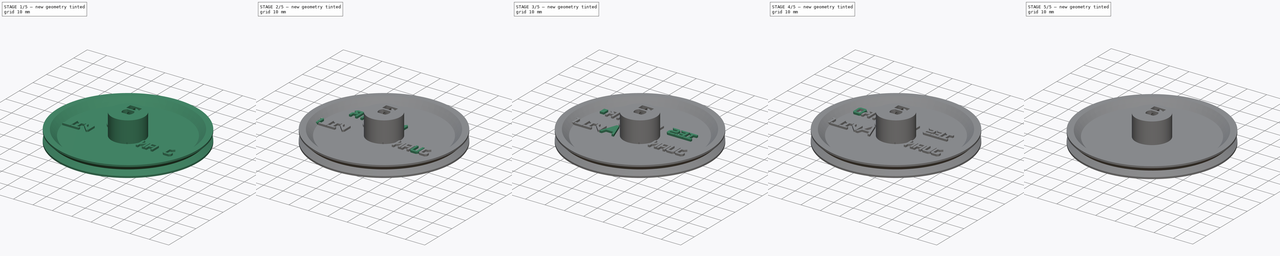
[diagram: build sequence overview — one tinted view per stage of 5, left to right]
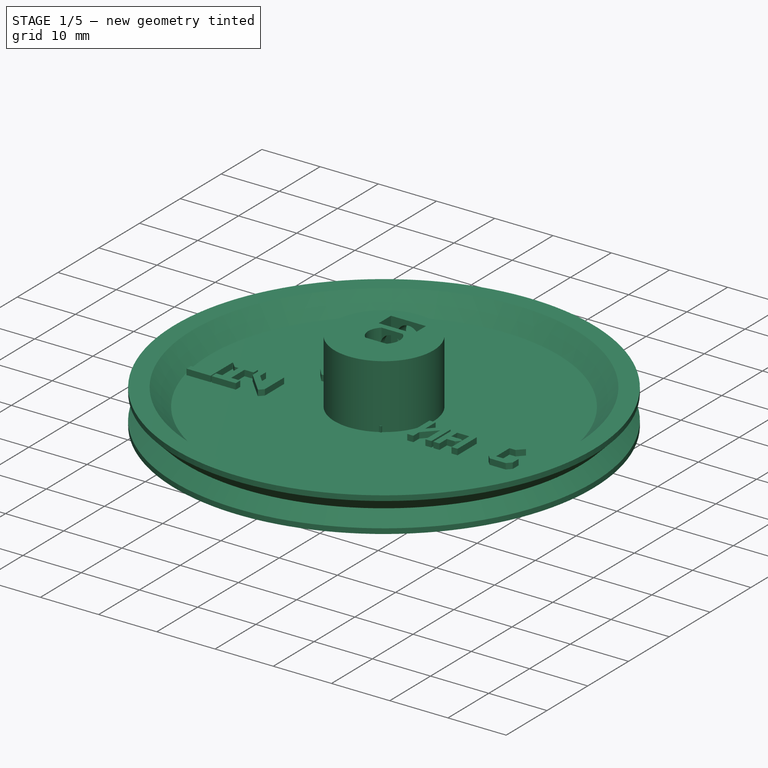
[diagram: stage 1 of 5 — iso view after this stage's code; geometry added in this stage tinted green]
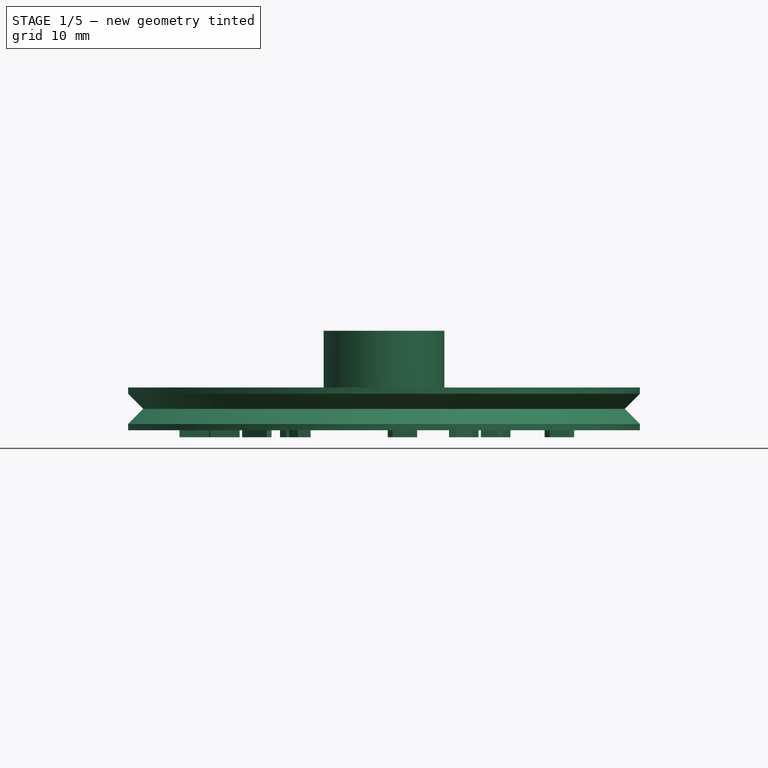
[diagram: stage 1 of 5 — front view after this stage's code; geometry added in this stage tinted green]
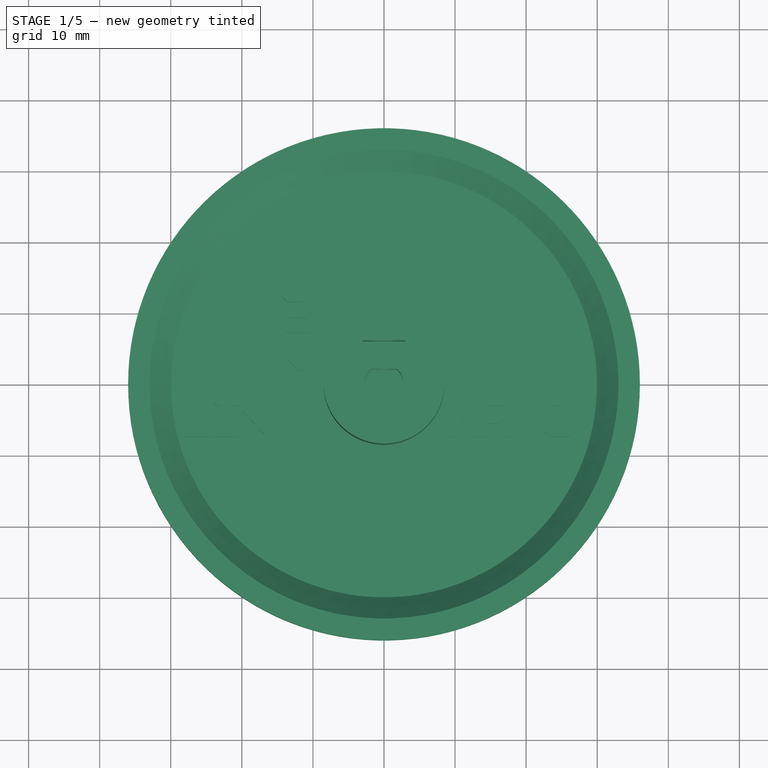
[diagram: stage 1 of 5 — top view after this stage's code; geometry added in this stage tinted green]
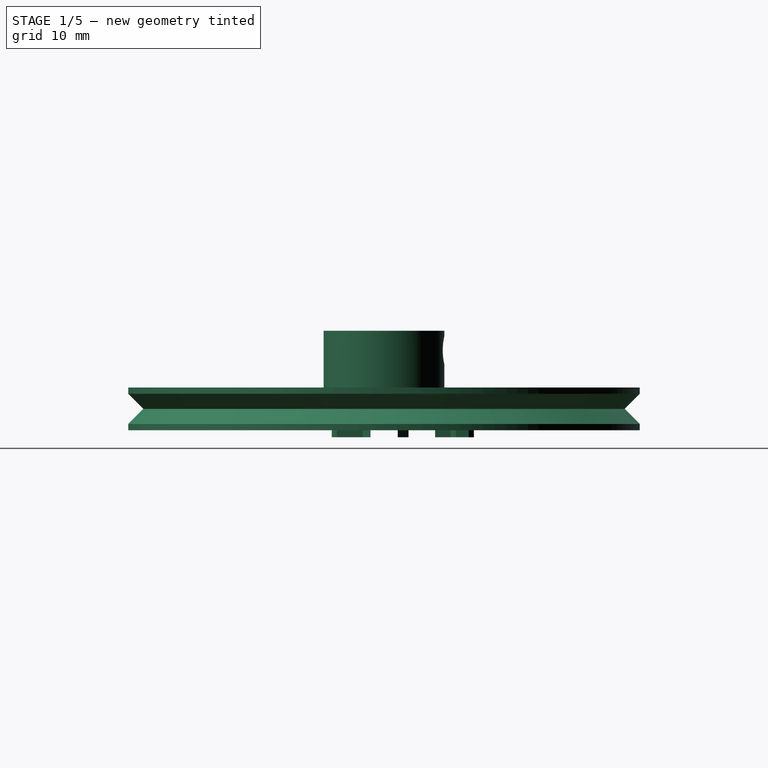
[diagram: stage 1 of 5 — right view after this stage's code; geometry added in this stage tinted green]
FCSTD DOCUMENT  (FreeCAD 0.19R24291 (Git))
Label: ruedaEscorniJuande
License: All rights reserved
LicenseURL: http://en.wikipedia.org/wiki/All_rights_reserved
objects: Part::Extrusion×45, Part::Feature×27, Part::Cut×7, Sketcher::SketchObject×2, Part::Cylinder×2, Part::MultiFuse×2, PartDesign::Revolution×1, Part::Box×1, PartDesign::FeatureBase×1, PartDesign::Pocket×1, PartDesign::Body×1
note: 92 computed .brp shape members not serialized (recipe doc carries the construction recipe); baked Part::Feature solids carry a one-line shape summary decoded from their .brp

FEATURE [Part::Extrusion] Extrude052
  Base = -> path849
  Dir = (0,0,1)
  DirMode = 2
  FaceMakerClass = Part::FaceMakerBullseye
  LengthFwd = 5
  LengthRev = 0
  Solid = true
  Symmetric = false
FEATURE [Part::Extrusion] Extrude060
  Base = -> path857002
  Dir = (0,0,1)
  DirMode = 2
  FaceMakerClass = Part::FaceMakerBullseye
  LengthFwd = 5
  LengthRev = 0
  Solid = true
  Symmetric = false
FEATURE [Part::Extrusion] Extrude064
  Base = -> path863
  Dir = (0,0,1)
  DirMode = 2
  FaceMakerClass = Part::FaceMakerBullseye
  LengthFwd = 5
  LengthRev = 0
  Solid = true
  Symmetric = false
FEATURE [Part::Extrusion] Extrude062
  Base = -> path861
  Dir = (0,0,1)
  DirMode = 2
  FaceMakerClass = Part::FaceMakerBullseye
  LengthFwd = 5
  LengthRev = 0
  Solid = true
  Symmetric = false
FEATURE [Part::Extrusion] Extrude061
  Base = -> path859
  Dir = (0,0,1)
  DirMode = 2
  FaceMakerClass = Part::FaceMakerBullseye
  LengthFwd = 5
  LengthRev = 0
  Solid = true
  Symmetric = false
FEATURE [Part::Extrusion] Extrude043
  Base = -> path837
  Dir = (0,0,1)
  DirMode = 2
  FaceMakerClass = Part::FaceMakerBullseye
  LengthFwd = 5
  LengthRev = 0
  Solid = true
  Symmetric = false
FEATURE [Part::Extrusion] Extrude050
  Base = -> path845
  Dir = (0,0,1)
  DirMode = 2
  FaceMakerClass = Part::FaceMakerBullseye
  LengthFwd = 5
  LengthRev = 0
  Solid = true
  Symmetric = false
FEATURE [Part::Extrusion] Extrude053
  Base = -> path851
  Dir = (0,0,1)
  DirMode = 2
  FaceMakerClass = Part::FaceMakerBullseye
  LengthFwd = 5
  LengthRev = 0
  Solid = true
  Symmetric = false
FEATURE [Part::Extrusion] Extrude021
  Base = -> path853
  Dir = (0,0,-1)
  DirMode = 2
  FaceMakerClass = Part::FaceMakerBullseye
  LengthFwd = 5
  LengthRev = 0
  Placement = pos=(0,0,5) rot=(0,0,1;0rad)
  Solid = true
  Symmetric = false
FEATURE [Part::Extrusion] Extrude054
  Base = -> path853
  Dir = (0,0,-1)
  DirMode = 2
  FaceMakerClass = Part::FaceMakerBullseye
  LengthFwd = 5
  LengthRev = 0
  Placement = pos=(0,0,5) rot=(0,0,1;0rad)
  Solid = true
  Symmetric = false
FEATURE [Part::Extrusion] Extrude055
  Base = -> path853001
  Dir = (0,0,1)
  DirMode = 2
  FaceMakerClass = Part::FaceMakerBullseye
  LengthFwd = 5
  LengthRev = 0
  Solid = true
  Symmetric = false
FEATURE [Part::Feature] Body001
  shape: bbox 17 x 17 x 11 mm, 16 faces (baked)
FEATURE [Part::MultiFuse] Fusion  label="ruedaBase"
  Shapes = -> [Revolution001001,Body001]
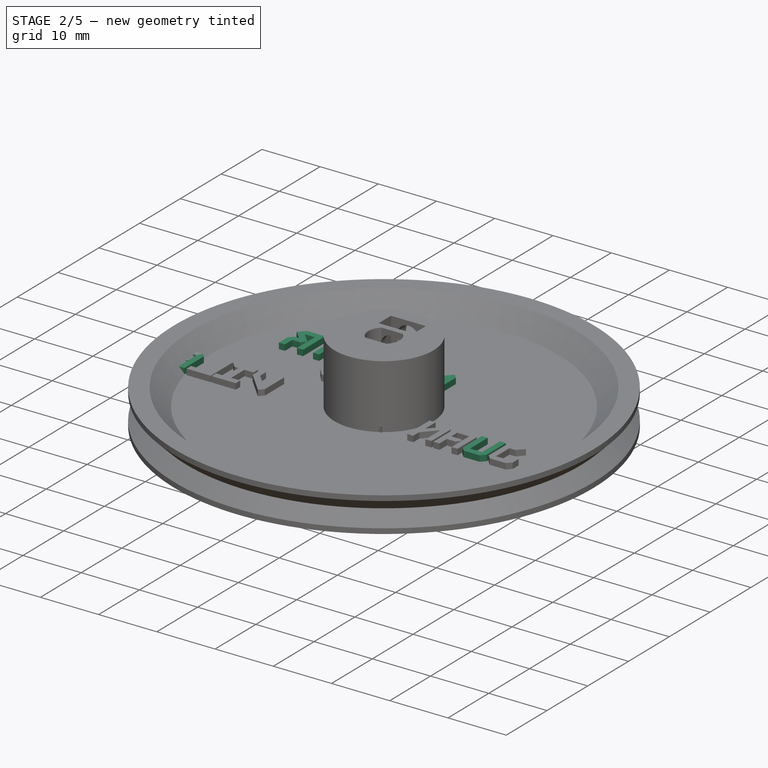
[diagram: stage 2 of 5 — iso view after this stage's code; geometry added in this stage tinted green]
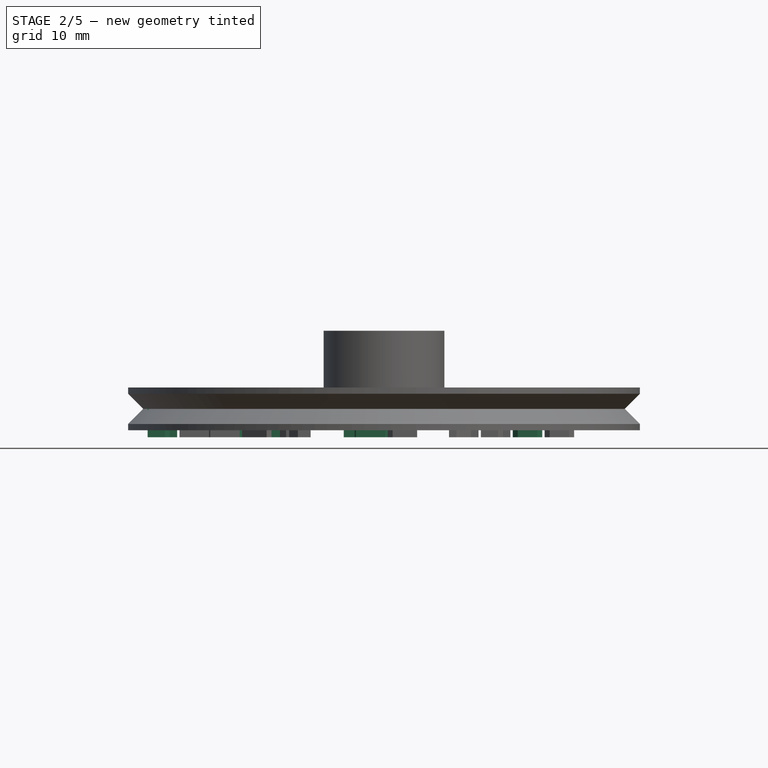
[diagram: stage 2 of 5 — front view after this stage's code; geometry added in this stage tinted green]
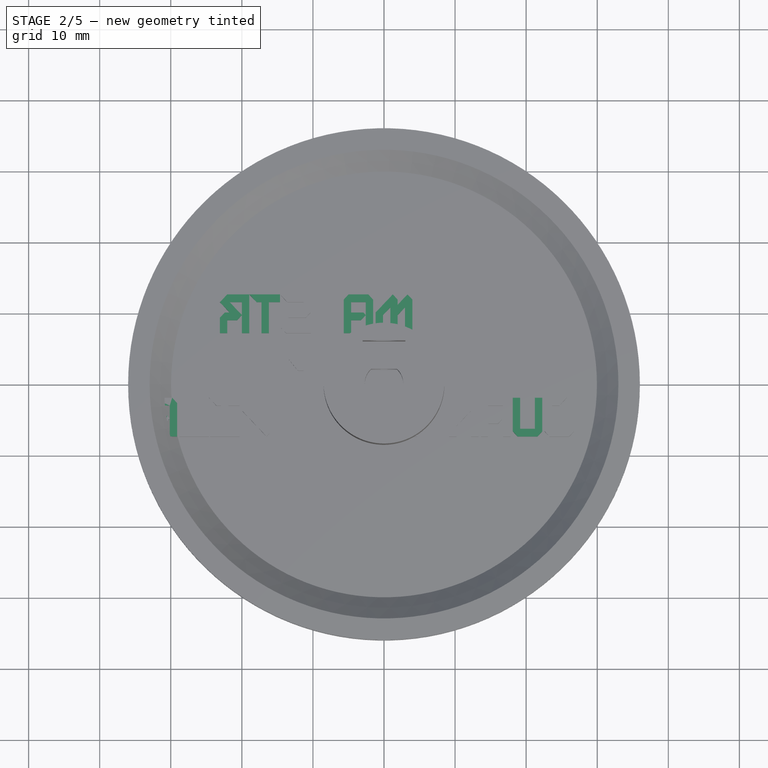
[diagram: stage 2 of 5 — top view after this stage's code; geometry added in this stage tinted green]
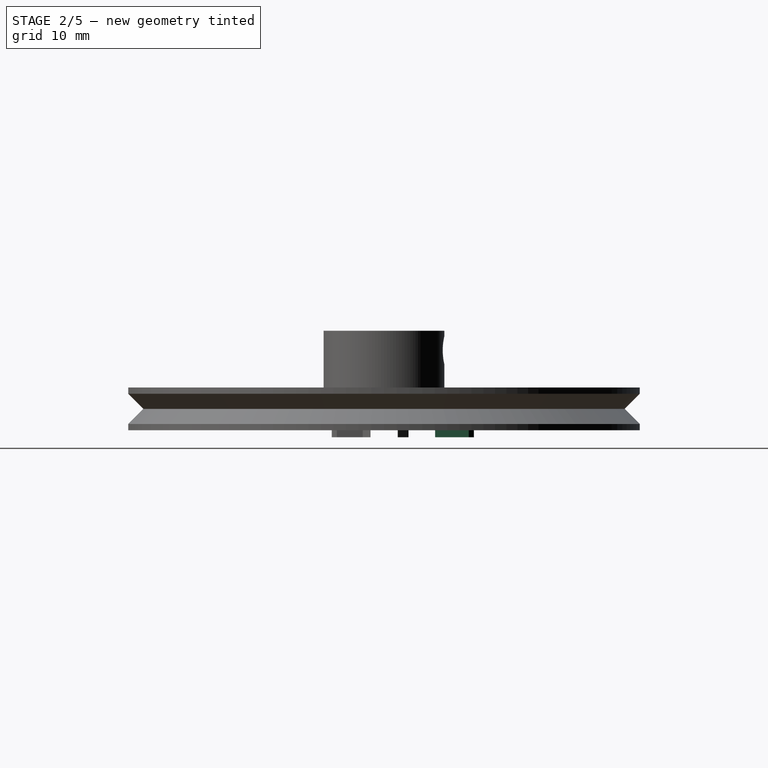
[diagram: stage 2 of 5 — right view after this stage's code; geometry added in this stage tinted green]
FEATURE [Part::Extrusion] Extrude029
  Base = -> path861
  Dir = (0,0,1)
  DirMode = 2
  FaceMakerClass = Part::FaceMakerBullseye
  LengthFwd = 5
  LengthRev = 0
  Solid = true
  Symmetric = false
FEATURE [Part::Extrusion] Extrude031
  Base = -> path863
  Dir = (0,0,1)
  DirMode = 2
  FaceMakerClass = Part::FaceMakerBullseye
  LengthFwd = 5
  LengthRev = 0
  Solid = true
  Symmetric = false
FEATURE [Part::Extrusion] Extrude039
  Base = -> path831
  Dir = (0,0,1)
  DirMode = 2
  FaceMakerClass = Part::FaceMakerBullseye
  LengthFwd = 5
  LengthRev = 0
  Solid = true
  Symmetric = false
FEATURE [Part::Extrusion] Extrude027
  Base = -> path857002
  Dir = (0,0,1)
  DirMode = 2
  FaceMakerClass = Part::FaceMakerBullseye
  LengthFwd = 5
  LengthRev = 0
  Solid = true
  Symmetric = false
FEATURE [Part::Extrusion] Extrude040
  Base = -> path833
  Dir = (0,0,1)
  DirMode = 2
  FaceMakerClass = Part::FaceMakerBullseye
  LengthFwd = 5
  LengthRev = 0
  Solid = true
  Symmetric = false
FEATURE [Part::Extrusion] Extrude032
  Base = -> path865
  Dir = (0,0,1)
  DirMode = 2
  FaceMakerClass = Part::FaceMakerBullseye
  LengthFwd = 5
  LengthRev = 0
  Solid = true
  Symmetric = false
FEATURE [Part::Extrusion] Extrude023
  Base = -> path855
  Dir = (0,0,1)
  DirMode = 2
  FaceMakerClass = Part::FaceMakerBullseye
  LengthFwd = 5
  LengthRev = 0
  Solid = true
  Symmetric = false
FEATURE [Part::Extrusion] Extrude065
  Base = -> path865
  Dir = (0,0,1)
  DirMode = 2
  FaceMakerClass = Part::FaceMakerBullseye
  LengthFwd = 5
  LengthRev = 0
  Solid = true
  Symmetric = false
FEATURE [Part::Extrusion] Extrude056
  Base = -> path855
  Dir = (0,0,1)
  DirMode = 2
  FaceMakerClass = Part::FaceMakerBullseye
  LengthFwd = 5
  LengthRev = 0
  Solid = true
  Symmetric = false
FEATURE [Part::Extrusion] Extrude051
  Base = -> path847
  Dir = (0,0,1)
  DirMode = 2
  FaceMakerClass = Part::FaceMakerBullseye
  LengthFwd = 5
  LengthRev = 0
  Solid = true
  Symmetric = false
FEATURE [Part::Extrusion] Extrude045
  Base = -> path839
  Dir = (0,0,1)
  DirMode = 2
  FaceMakerClass = Part::FaceMakerBullseye
  LengthFwd = 5
  LengthRev = 0
  Solid = true
  Symmetric = false
FEATURE [Part::Extrusion] Extrude047
  Base = -> path841
  Dir = (0,0,1)
  DirMode = 2
  FaceMakerClass = Part::FaceMakerBullseye
  LengthFwd = 5
  LengthRev = 0
  Solid = true
  Symmetric = false
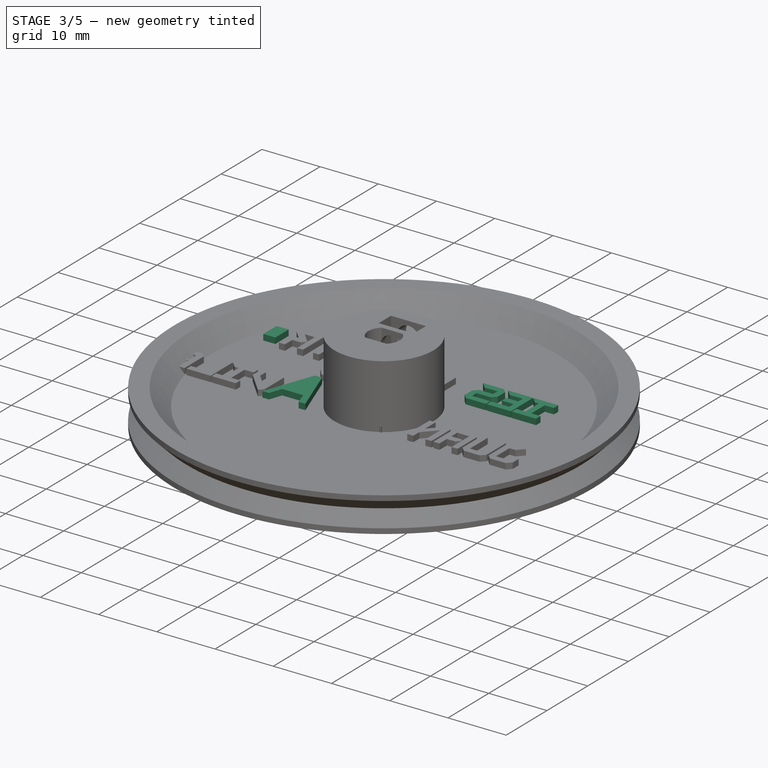
[diagram: stage 3 of 5 — iso view after this stage's code; geometry added in this stage tinted green]
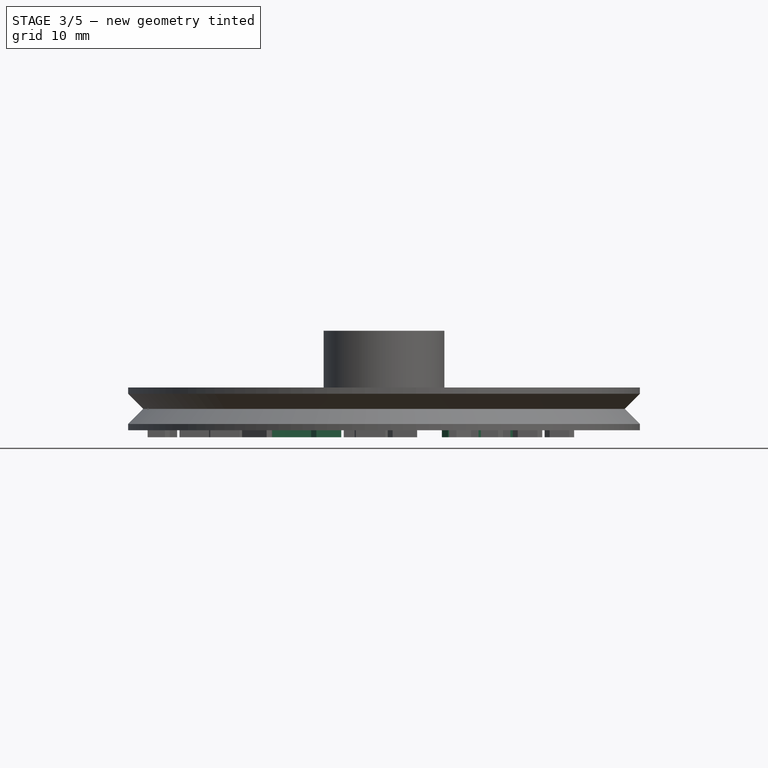
[diagram: stage 3 of 5 — front view after this stage's code; geometry added in this stage tinted green]
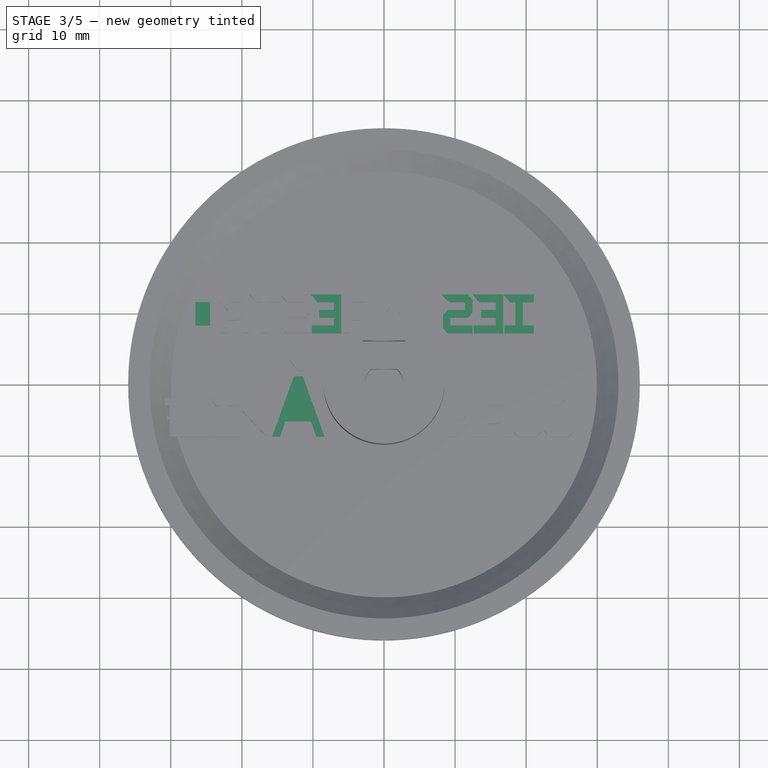
[diagram: stage 3 of 5 — top view after this stage's code; geometry added in this stage tinted green]
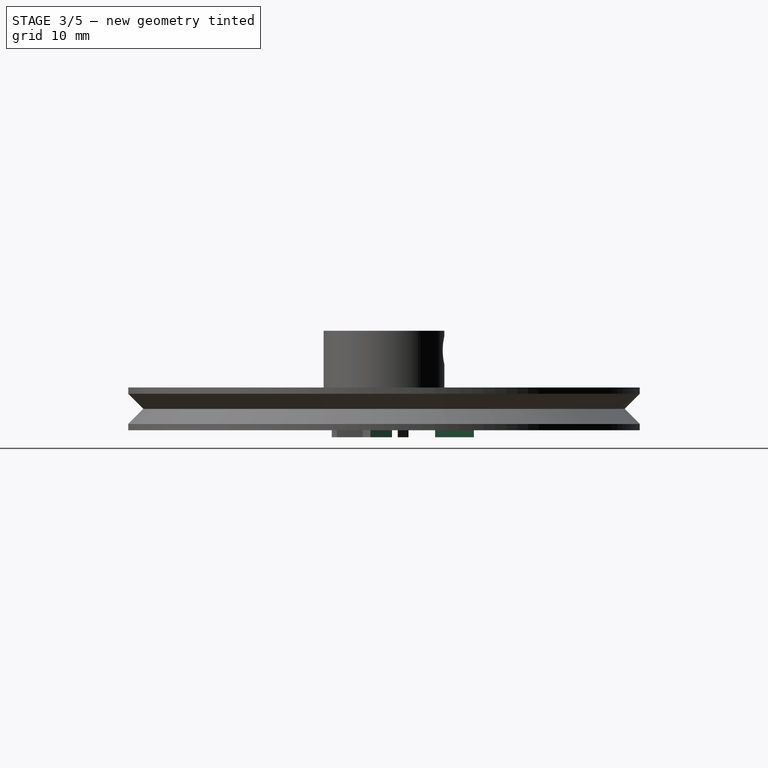
[diagram: stage 3 of 5 — right view after this stage's code; geometry added in this stage tinted green]
FEATURE [Part::Extrusion] Extrude015
  Base = -> path843
  Dir = (0,0,-1)
  DirMode = 2
  FaceMakerClass = Part::FaceMakerBullseye
  LengthFwd = 5
  LengthRev = 0
  Placement = pos=(0,0,5) rot=(0,0,1;0rad)
  Solid = true
  Symmetric = false
FEATURE [Part::Extrusion] Extrude026
  Base = -> path857001
  Dir = (0,0,1)
  DirMode = 2
  FaceMakerClass = Part::FaceMakerBullseye
  LengthFwd = 5
  LengthRev = 0
  Solid = true
  Symmetric = false
FEATURE [Part::Extrusion] Extrude033
  Base = -> path825
  Dir = (0,0,1)
  DirMode = 2
  FaceMakerClass = Part::FaceMakerBullseye
  LengthFwd = 5
  LengthRev = 0
  Solid = true
  Symmetric = false
FEATURE [Part::Extrusion] Extrude019
  Base = -> path849
  Dir = (0,0,1)
  DirMode = 2
  FaceMakerClass = Part::FaceMakerBullseye
  LengthFwd = 5
  LengthRev = 0
  Solid = true
  Symmetric = false
FEATURE [Part::Extrusion] Extrude035
  Base = -> path827
  Dir = (0,0,1)
  DirMode = 2
  FaceMakerClass = Part::FaceMakerBullseye
  LengthFwd = 5
  LengthRev = 0
  Solid = true
  Symmetric = false
FEATURE [Part::Extrusion] Extrude041
  Base = -> path835
  Dir = (0,0,1)
  DirMode = 2
  FaceMakerClass = Part::FaceMakerBullseye
  LengthFwd = 5
  LengthRev = 0
  Solid = true
  Symmetric = false
FEATURE [Part::Extrusion] Extrude020
  Base = -> path851
  Dir = (0,0,1)
  DirMode = 2
  FaceMakerClass = Part::FaceMakerBullseye
  LengthFwd = 5
  LengthRev = 0
  Solid = true
  Symmetric = false
FEATURE [Part::Extrusion] Extrude028
  Base = -> path859
  Dir = (0,0,1)
  DirMode = 2
  FaceMakerClass = Part::FaceMakerBullseye
  LengthFwd = 5
  LengthRev = 0
  Solid = true
  Symmetric = false
FEATURE [Part::Extrusion] Extrude025
  Base = -> path857
  Dir = (0,0,-1)
  DirMode = 2
  FaceMakerClass = Part::FaceMakerBullseye
  LengthFwd = 5
  LengthRev = 0
  Placement = pos=(0,0,5) rot=(0,0,1;0rad)
  Solid = true
  Symmetric = false
FEATURE [Part::Extrusion] Extrude037
  Base = -> path829
  Dir = (0,0,1)
  DirMode = 2
  FaceMakerClass = Part::FaceMakerBullseye
  LengthFwd = 5
  LengthRev = 0
  Solid = true
  Symmetric = false
FEATURE [Part::Cut] Cut004
  Base = -> Extrude055
  Tool = -> Extrude021
FEATURE [Part::Cut] Cut005
  Base = -> Cut004
  Tool = -> Extrude054
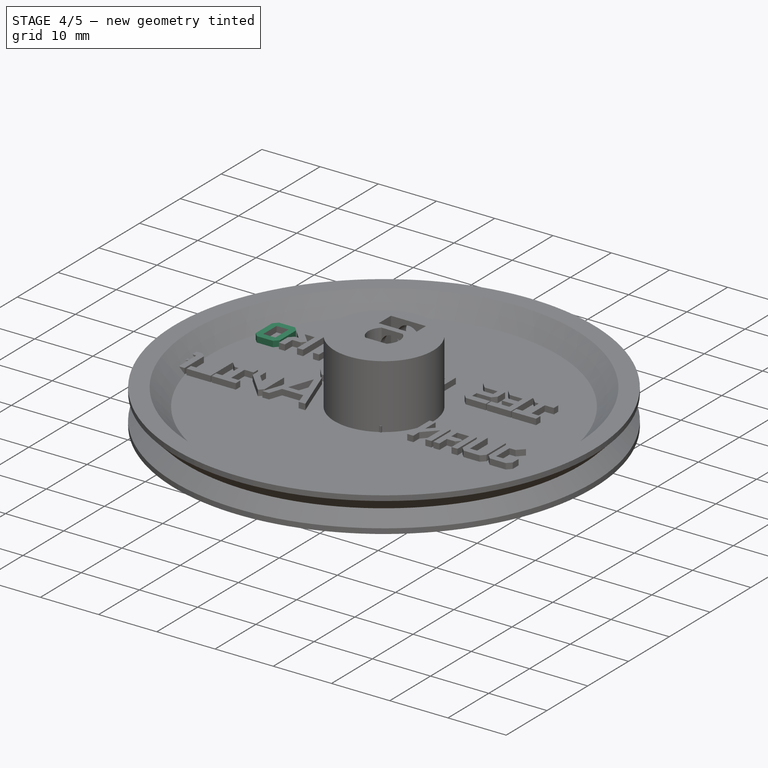
[diagram: stage 4 of 5 — iso view after this stage's code; geometry added in this stage tinted green]
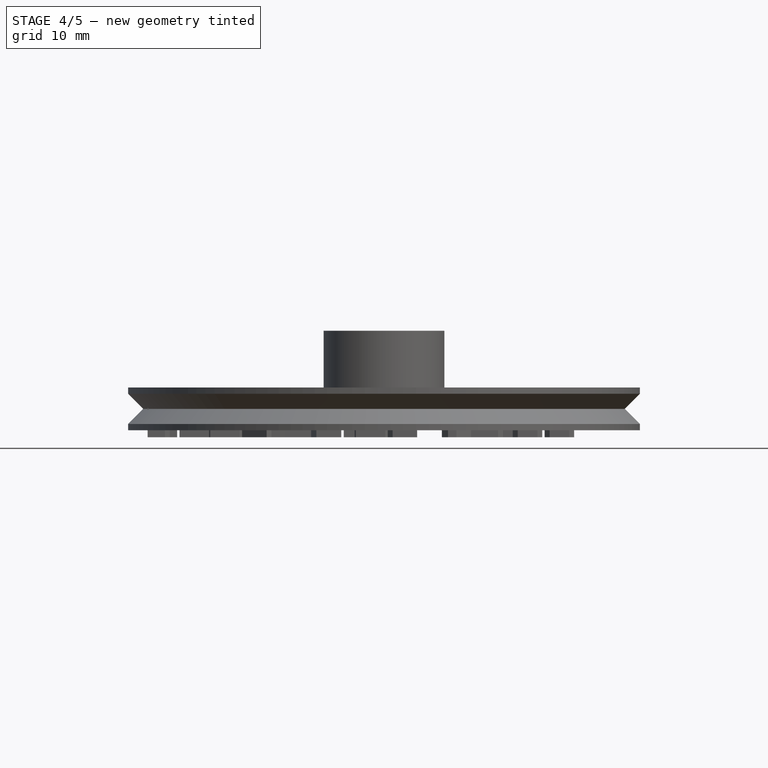
[diagram: stage 4 of 5 — front view after this stage's code; geometry added in this stage tinted green]
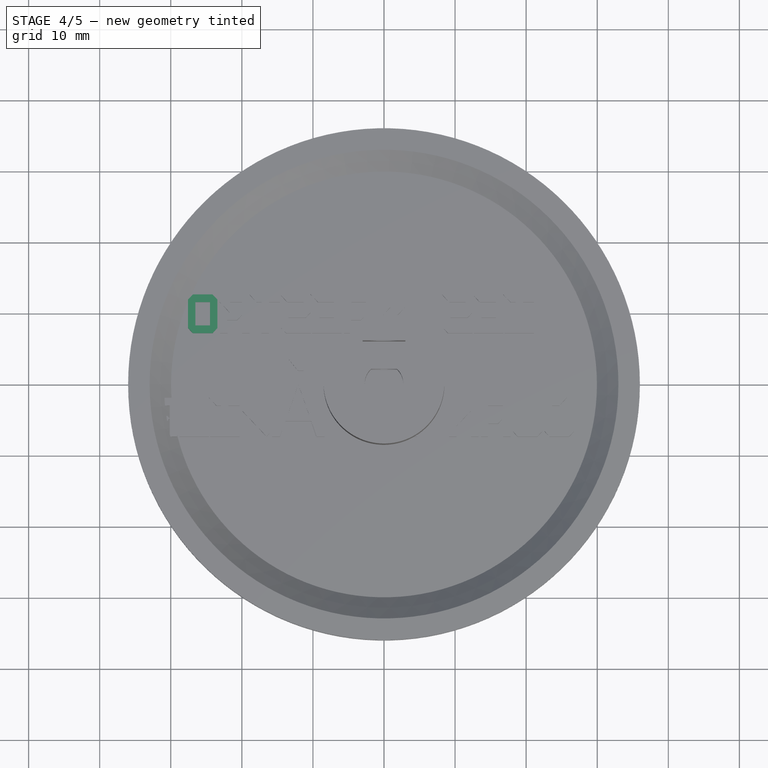
[diagram: stage 4 of 5 — top view after this stage's code; geometry added in this stage tinted green]
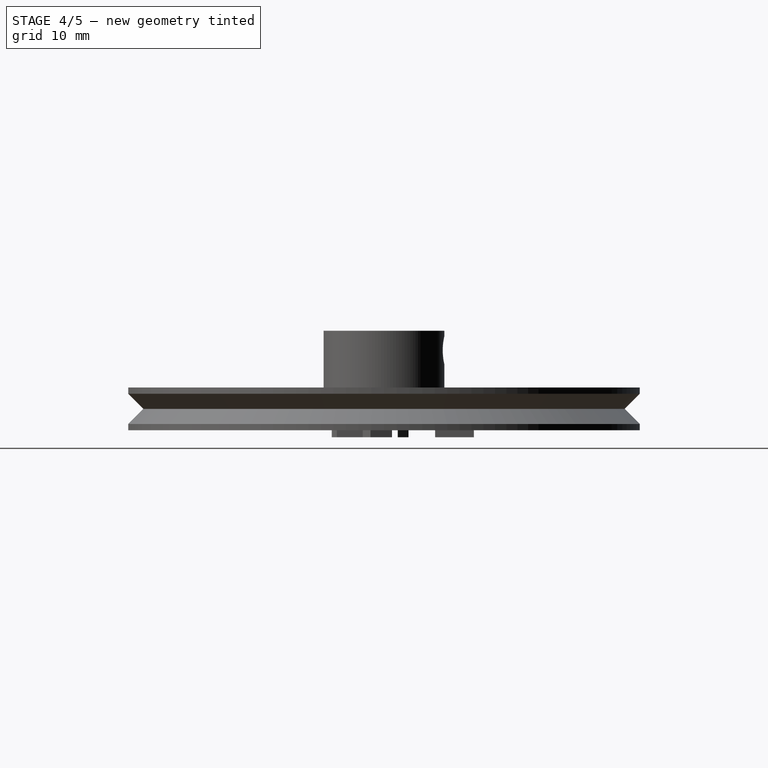
[diagram: stage 4 of 5 — right view after this stage's code; geometry added in this stage tinted green]
FEATURE [PartDesign::Body] Body
  BaseFeature = -> Cut002
  Group = -> [BaseFeature,Sketch,Pocket]
  Origin = -> Origin
  Tip = -> Pocket
FEATURE [Part::Feature] Revolution001001
  Placement = pos=(0,0,0) rot=(1,0,0;1.5708rad)
  shape: bbox 72 x 72 x 6 mm, 10 faces (baked)
FEATURE [Part::Feature] path825
  Placement = pos=(81,80,-4) rot=(0,1,0;3.14159rad)
  shape: bbox 4.303 x 5.455 x 2.053e-07 mm, 0 faces, 0 solids (baked)
FEATURE [Part::Feature] path837
  Placement = pos=(81,80,-4) rot=(0,1,0;3.14159rad)
  shape: bbox 4.303 x 5.455 x 2.053e-07 mm, 0 faces, 0 solids (baked)
FEATURE [Part::Feature] path831
  Placement = pos=(81,80,-4) rot=(0,1,0;3.14159rad)
  shape: bbox 5.176 x 5.455 x 2.053e-07 mm, 0 faces, 0 solids (baked)
FEATURE [Part::Feature] path853001
  Placement = pos=(81,80,-4) rot=(0,1,0;3.14159rad)
  shape: bbox 4.141 x 5.455 x 2.053e-07 mm, 0 faces, 0 solids (baked)
FEATURE [Part::Feature] path847
  Placement = pos=(81,80,-4) rot=(0,1,0;3.14159rad)
  shape: bbox 4.141 x 5.455 x 2.053e-07 mm, 0 faces, 0 solids (baked)
FEATURE [Part::Feature] path857001
  Placement = pos=(81,80,-4) rot=(0,1,0;3.14159rad)
  shape: bbox 7.376 x 8.483 x 2.053e-07 mm, 0 faces, 0 solids (baked)
FEATURE [Part::Feature] path829
  Placement = pos=(81,80,-4) rot=(0,1,0;3.14159rad)
  shape: bbox 4.303 x 5.455 x 2.053e-07 mm, 0 faces, 0 solids (baked)
FEATURE [Part::Feature] path835
  Placement = pos=(81,80,-4) rot=(0,1,0;3.14159rad)
  shape: bbox 4.303 x 5.455 x 2.053e-07 mm, 0 faces, 0 solids (baked)
FEATURE [Part::Feature] path833
  Placement = pos=(81,80,-4) rot=(0,1,0;3.14159rad)
  shape: bbox 4.141 x 5.455 x 2.053e-07 mm, 0 faces, 0 solids (baked)
FEATURE [Part::Feature] path845
  Placement = pos=(81,80,-4) rot=(0,1,0;3.14159rad)
  shape: bbox 4.141 x 5.455 x 2.053e-07 mm, 0 faces, 0 solids (baked)
FEATURE [Part::Feature] path849
  Placement = pos=(81,80,-4) rot=(0,1,0;3.14159rad)
  shape: bbox 4.141 x 5.455 x 2.053e-07 mm, 0 faces, 0 solids (baked)
FEATURE [Part::Feature] path843
  Placement = pos=(81,80,-4) rot=(0,1,0;3.14159rad)
  shape: bbox 2.07 x 3.273 x 2.053e-07 mm, 0 faces, 0 solids (baked)
FEATURE [Part::Feature] path827
  Placement = pos=(81,80,-4) rot=(0,1,0;3.14159rad)
  shape: bbox 4.303 x 5.455 x 2.053e-07 mm, 0 faces, 0 solids (baked)
FEATURE [Part::Feature] path839
  Placement = pos=(81,80,-4) rot=(0,1,0;3.14159rad)
  shape: bbox 4.303 x 5.455 x 2.053e-07 mm, 0 faces, 0 solids (baked)
FEATURE [Part::Feature] path841
  Placement = pos=(81,80,-4) rot=(0,1,0;3.14159rad)
  shape: bbox 4.141 x 5.455 x 2.053e-07 mm, 0 faces, 0 solids (baked)
FEATURE [Part::Feature] path843001
  Placement = pos=(81,80,-4) rot=(0,1,0;3.14159rad)
  shape: bbox 4.141 x 5.455 x 2.053e-07 mm, 0 faces, 0 solids (baked)
FEATURE [Part::Feature] path851
  Placement = pos=(81,80,-4) rot=(0,1,0;3.14159rad)
  shape: bbox 4.141 x 5.455 x 2.053e-07 mm, 0 faces, 0 solids (baked)
FEATURE [Part::Feature] path853
  Placement = pos=(81,80,-4) rot=(0,1,0;3.14159rad)
  shape: bbox 2.07 x 3.273 x 2.053e-07 mm, 0 faces, 0 solids (baked)
FEATURE [Part::Feature] path855
  Placement = pos=(81,80,-4) rot=(0,1,0;3.14159rad)
  shape: bbox 4.303 x 5.455 x 2.053e-07 mm, 0 faces, 0 solids (baked)
FEATURE [Part::Feature] path857
  Placement = pos=(81,80,-4) rot=(0,1,0;3.14159rad)
  shape: bbox 2.96 x 4.222 x 2.053e-07 mm, 0 faces, 0 solids (baked)
FEATURE [Part::Feature] path857002
  Placement = pos=(81,80,-4) rot=(0,1,0;3.14159rad)
  shape: bbox 2.054 x 1.5 x 2.053e-07 mm, 0 faces, 0 solids (baked)
FEATURE [Part::Feature] path859
  Placement = pos=(81,80,-4) rot=(0,1,0;3.14159rad)
  shape: bbox 4.141 x 5.455 x 2.053e-07 mm, 0 faces, 0 solids (baked)
FEATURE [Part::Feature] path865
  Placement = pos=(81,80,-4) rot=(0,1,0;3.14159rad)
  shape: bbox 4.141 x 5.455 x 2.053e-07 mm, 0 faces, 0 solids (baked)
FEATURE [Part::Feature] path861
  Placement = pos=(81,80,-4) rot=(0,1,0;3.14159rad)
  shape: bbox 4.303 x 5.455 x 2.053e-07 mm, 0 faces, 0 solids (baked)
FEATURE [Part::Feature] path863
  Placement = pos=(81,80,-4) rot=(0,1,0;3.14159rad)
  shape: bbox 4.141 x 5.455 x 2.053e-07 mm, 0 faces, 0 solids (baked)
FEATURE [Part::Extrusion] Extrude016
  Base = -> path843001
  Dir = (0,0,1)
  DirMode = 2
  FaceMakerClass = Part::FaceMakerBullseye
  LengthFwd = 5
  LengthRev = 0
  Solid = true
  Symmetric = false
FEATURE [Part::Extrusion] Extrude018
  Base = -> path847
  Dir = (0,0,1)
  DirMode = 2
  FaceMakerClass = Part::FaceMakerBullseye
  LengthFwd = 5
  LengthRev = 0
  Solid = true
  Symmetric = false
FEATURE [Part::Extrusion] Extrude
  Base = -> path825
  Dir = (0,0,1)
  DirMode = 2
  FaceMakerClass = Part::FaceMakerBullseye
  LengthFwd = 5
  LengthRev = 0
  Solid = true
  Symmetric = false
FEATURE [Part::Extrusion] Extrude006
  Base = -> path831
  Dir = (0,0,1)
  DirMode = 2
  FaceMakerClass = Part::FaceMakerBullseye
  LengthFwd = 5
  LengthRev = 0
  Solid = true
  Symmetric = false
FEATURE [Part::Extrusion] Extrude004
  Base = -> path829
  Dir = (0,0,1)
  DirMode = 2
  FaceMakerClass = Part::FaceMakerBullseye
  LengthFwd = 5
  LengthRev = 0
  Solid = true
  Symmetric = false
FEATURE [Part::Extrusion] Extrude002
  Base = -> path827
  Dir = (0,0,1)
  DirMode = 2
  FaceMakerClass = Part::FaceMakerBullseye
  LengthFwd = 5
  LengthRev = 0
  Solid = true
  Symmetric = false
FEATURE [Part::Extrusion] Extrude014
  Base = -> path841
  Dir = (0,0,1)
  DirMode = 2
  FaceMakerClass = Part::FaceMakerBullseye
  LengthFwd = 5
  LengthRev = 0
  Solid = true
  Symmetric = false
FEATURE [Part::Extrusion] Extrude008
  Base = -> path835
  Dir = (0,0,1)
  DirMode = 2
  FaceMakerClass = Part::FaceMakerBullseye
  LengthFwd = 5
  LengthRev = 0
  Solid = true
  Symmetric = false
FEATURE [Part::Extrusion] Extrude007
  Base = -> path833
  Dir = (0,0,1)
  DirMode = 2
  FaceMakerClass = Part::FaceMakerBullseye
  LengthFwd = 5
  LengthRev = 0
  Solid = true
  Symmetric = false
FEATURE [Part::Extrusion] Extrude010
  Base = -> path837
  Dir = (0,0,1)
  DirMode = 2
  FaceMakerClass = Part::FaceMakerBullseye
  LengthFwd = 5
  LengthRev = 0
  Solid = true
  Symmetric = false
FEATURE [Part::Cut] Cut006
  Base = -> Extrude016
  Tool = -> Extrude015
FEATURE [Part::Cut] Cut003
  Base = -> Extrude026
  Tool = -> Extrude025
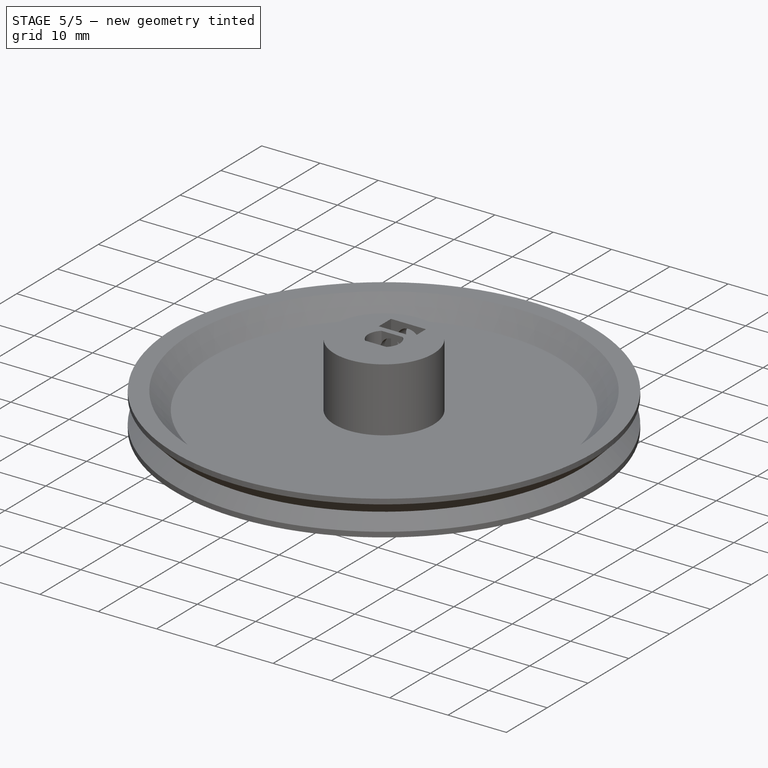
[diagram: stage 5 of 5 — iso view after this stage's code; geometry added in this stage tinted green]
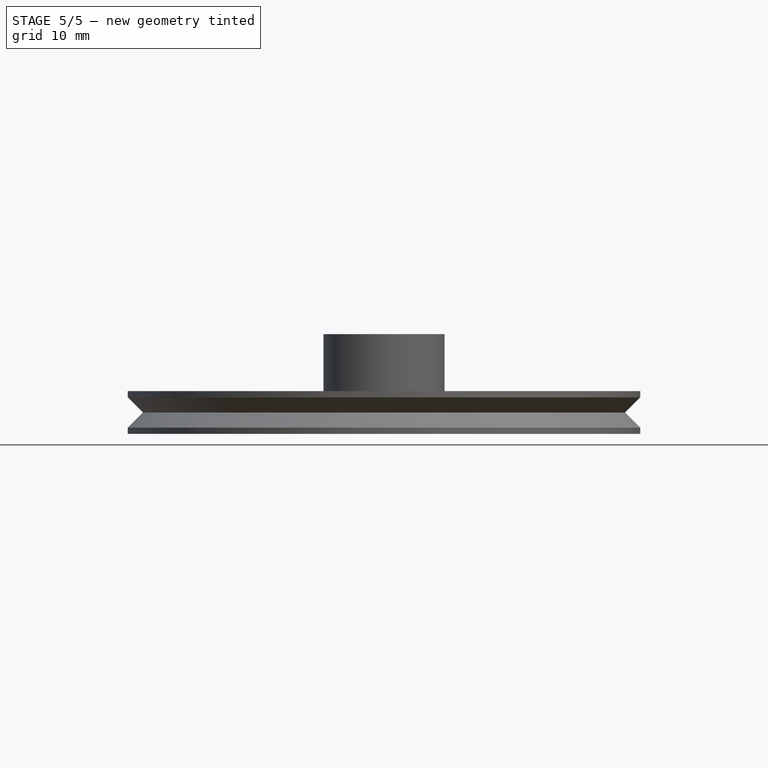
[diagram: stage 5 of 5 — front view after this stage's code; geometry added in this stage tinted green]
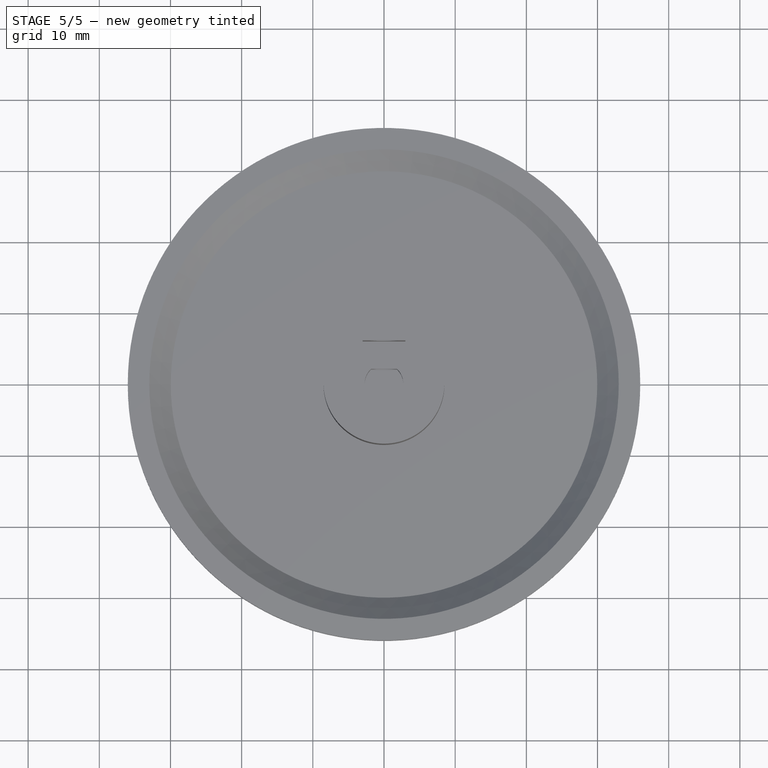
[diagram: stage 5 of 5 — top view after this stage's code; geometry added in this stage tinted green]
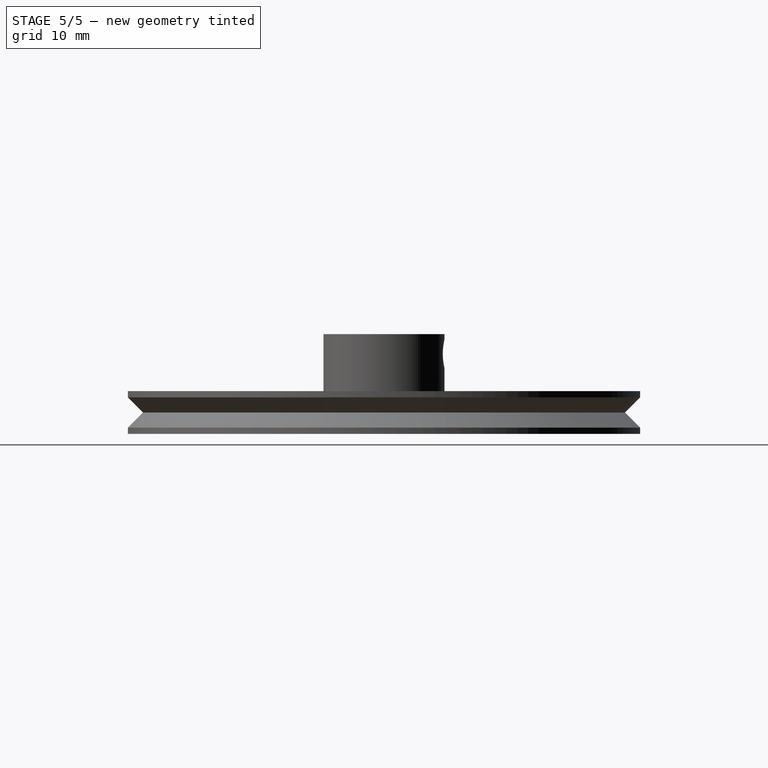
[diagram: stage 5 of 5 — right view after this stage's code; geometry added in this stage tinted green]
FEATURE [Sketcher::SketchObject] Sketch002  label="SectionSketch001"
  FullyConstrained = true
  MapMode = 5
  Placement = pos=(0,0,0) rot=(0,0.707107,0.707107;3.14159rad)
  Support = -> [XZ_Plane002]
  sketch-geometry (19):
    g0: LineSegment StartX=0 StartY=2 StartZ=0 EndX=-5.98528 EndY=2 EndZ=0
    g1: LineSegment StartX=-5.98528 StartY=2 StartZ=0 EndX=-8 EndY=0 EndZ=0
    g2: LineSegment StartX=-8 StartY=0 StartZ=0 EndX=-29.9558 EndY=0 EndZ=0
    g3: LineSegment StartX=-29.9558 StartY=0 StartZ=0 EndX=-32.9779 EndY=3 EndZ=0
    g4: LineSegment StartX=-32.9779 StartY=3 StartZ=0 EndX=-36 EndY=3 EndZ=0
    g5: LineSegment StartX=-36 StartY=3 StartZ=0 EndX=-36 EndY=2.12132 EndZ=0
    g6: LineSegment StartX=-36 StartY=2.12132 StartZ=0 EndX=-33.8787 EndY=0 EndZ=0
    g7: LineSegment StartX=-33.8787 StartY=0 StartZ=0 EndX=-36 EndY=-2.12132 EndZ=0
    g8: LineSegment StartX=-36 StartY=-2.12132 StartZ=0 EndX=-36 EndY=-3 EndZ=0
    g9: LineSegment StartX=-36 StartY=-3 StartZ=0 EndX=0 EndY=-3 EndZ=0
    g10: LineSegment StartX=0 StartY=-3 StartZ=0 EndX=0 EndY=2 EndZ=0
    g11: Circle CenterX=0 CenterY=0 CenterZ=0 NormalX=0 NormalY=0 NormalZ=1 AngleXU=0 Radius=36
    g12: LineSegment StartX=0 StartY=0 StartZ=0 EndX=-21.182 EndY=21.182 EndZ=0
    g13: LineSegment StartX=0 StartY=18 StartZ=0 EndX=-18 EndY=18 EndZ=0
    g14: ArcOfCircle CenterX=0 CenterY=0 CenterZ=0 NormalX=0 NormalY=0 NormalZ=1 AngleXU=0 Radius=29.9558 StartAngle=2.35619 EndAngle=3.14159
    g15: LineSegment StartX=-29.9558 StartY=0 StartZ=0 EndX=-36 EndY=6 EndZ=0
    g16: LineSegment StartX=-36 StartY=0 StartZ=0 EndX=-36 EndY=6 EndZ=0
    g17: LineSegment StartX=-18.9779 StartY=6 StartZ=0 EndX=-18.9779 EndY=0 EndZ=0
    g18: LineSegment StartX=-8 StartY=0 StartZ=0 EndX=-1.95584 EndY=6 EndZ=0
  constraints (56):
    c: Coincident(g0,g1)
    c: Coincident(g1,g2)
    c: Coincident(g2,g3)
    c: Coincident(g3,g4)
    c: Coincident(g4,g5)
    c: Coincident(g5,g6)
    c: Coincident(g6,g7)
    c: Coincident(g7,g8)
    c: Coincident(g8,g9)
    c: Coincident(g9,g10)
    c: Coincident(g10,g0)
    c: Horizontal(g9)
    c: Horizontal(g2)
    c: Horizontal(g0)
    c: Horizontal(g4)
    c: Vertical(g10)
    c: Vertical(g5)
    c: Vertical(g8)
    c: DistanceY(g-1,g0) = 2
    c: PointOnObject(g1,g-1)
    c: DistanceX(g-1,g1) = -8
    c: PointOnObject(g9,g-2)
    c: DistanceY(g-1,g9) = -3
    c: DistanceX(g8,g9) = 36
    c: Coincident(g11,g-1)
    c: Radius(g11) = 36
    c: Coincident(g12,g-1)
    c: Horizontal(g13)
    c: PointOnObject(g13,g-2)
    c: PointOnObject(g13,g12)
    c: Angle(g-1,g12) = 2.35619
    c: DistanceX(g13) = -18
    c: Distance(g12,g13) = 4.5
    c: Coincident(g14,g-1)
    c: Coincident(g14,g12)
    c: PointOnObject(g14,g-1)
    c: Coincident(g2,g14)
    c: Angle(g-1,g6) = 2.35619
    c: Angle(g6,g7) = 1.5708
    c: Equal(g6,g7)
    c: PointOnObject(g6,g-1)
    c: Distance(g7) = 3
    c: Coincident(g15,g2)
    c: PointOnObject(g16,g11)
    c: PointOnObject(g16,g-1)
    c: Vertical(g16)
    c: Coincident(g16,g15)
    c: DistanceY(g16) = 6
    c: PointOnObject(g3,g15)
    c: Vertical(g17)
    c: Symmetric(g18,g2,g17)
    c: Coincident(g18,g1)
    c: Equal(g18,g15)
    c: Symmetric(g15,g18,g17)
    c: PointOnObject(g0,g18)
    c: Equal(g5,g8)
FEATURE [PartDesign::Revolution] Revolution001
  AllowMultiFace = false
  Angle = 360
  Axis = (0,0,1)
  Base = (0,0,0)
  Placement = pos=(0,0,0) rot=(1,0,0;1.5708rad)
  Profile = -> Sketch002
  ReferenceAxis = -> Sketch002 [V_Axis]
FEATURE [Part::Box] Box  label="Cubo"
  AttacherType = Attacher::AttachEngine3D
  Height = 10
  Length = 6
  Placement = pos=(-3,3,2.5) rot=(0,0,1;0rad)
  Width = 3
FEATURE [Part::Cylinder] Cylinder  label="Cilindro"
  Angle = 360
  AttacherType = Attacher::AttachEngine3D
  Height = 11
  Radius = 8.5
FEATURE [Part::Cylinder] Cylinder002  label="Cilindro002"
  Angle = 360
  AttacherType = Attacher::AttachEngine3D
  Height = 10
  Placement = pos=(0,10.2,8.25) rot=(1,0,0;1.5708rad)
  Radius = 2
FEATURE [Part::Cut] Cut
  Base = -> Cylinder
  Tool = -> Box
FEATURE [Part::Cut] Cut002
  Base = -> Cut
  Placement = pos=(0,0,-1) rot=(0,0,1;0rad)
  Tool = -> Cylinder002
FEATURE [Sketcher::SketchObject] Sketch
  FullyConstrained = true
  MapMode = 2
  Placement = pos=(0,0,11) rot=(0,0,1;0rad)
  sketch-geometry (4):
    g0: ArcOfCircle CenterX=0 CenterY=0 CenterZ=0 NormalX=0 NormalY=0 NormalZ=1 AngleXU=0 Radius=2.7 StartAngle=2.30742 EndAngle=3.97576
    g1: LineSegment StartX=-1.81384 StartY=2 StartZ=0 EndX=1.81384 EndY=2 EndZ=0
    g2: LineSegment StartX=1.81384 StartY=-2 StartZ=0 EndX=-1.81384 EndY=-2 EndZ=0
    g3: ArcOfCircle CenterX=0 CenterY=0 CenterZ=0 NormalX=0 NormalY=0 NormalZ=1 AngleXU=0 Radius=2.7 StartAngle=5.44901 EndAngle=7.11736
  constraints (12):
    c: Coincident(g0,g-1)
    c: Radius(g0) = 2.7
    c: Horizontal(g2)
    c: DistanceY(g2,g1) = 4
    c: Coincident(g0,g1)
    c: Coincident(g3,g1)
    c: Equal(g0,g3)
    c: Coincident(g0,g3)
    c: Coincident(g2,g3)
    c: Coincident(g2,g0)
    c: Symmetric(g1,g0,g-2)
    c: Symmetric(g1,g2,g-1)
FEATURE [PartDesign::FeatureBase] BaseFeature
  BaseFeature = -> Cut002
FEATURE [PartDesign::Pocket] Pocket
  BaseFeature = -> BaseFeature
  Length = 6
  Length2 = 100
  Profile = -> Sketch
  Type = 0
FEATURE [Part::Extrusion] Extrude012
  Base = -> path839
  Dir = (0,0,1)
  DirMode = 2
  FaceMakerClass = Part::FaceMakerBullseye
  LengthFwd = 5
  LengthRev = 0
  Solid = true
  Symmetric = false
FEATURE [Part::Extrusion] Extrude017
  Base = -> path845
  Dir = (0,0,1)
  DirMode = 2
  FaceMakerClass = Part::FaceMakerBullseye
  LengthFwd = 5
  LengthRev = 0
  Solid = true
  Symmetric = false
FEATURE [Part::MultiFuse] Fusion001
  Placement = pos=(3,0,-3) rot=(0,0,1;0rad)
  Shapes = -> [Extrude056,Extrude033,Extrude032,Extrude035,Extrude064,Extrude065,Extrude040,Extrude045,Extrude043,Extrude047,Extrude051,Extrude053,Extrude052,Extrude060,Extrude061,Extrude062,Extrude050,Extrude039,Extrude041,Extrude031,Extrude027,Extrude028,Extrude029,Extrude037,Extrude002,Extrude,Extrude004,Extrude007,Extrude018,Extrude020,Extrude023,Extrude017,Extrude012,Extrude006,Extrude008,Extrude010,+5 more]
FEATURE [Part::Cut] Cut007
  Base = -> Fusion
  Tool = -> Fusion001
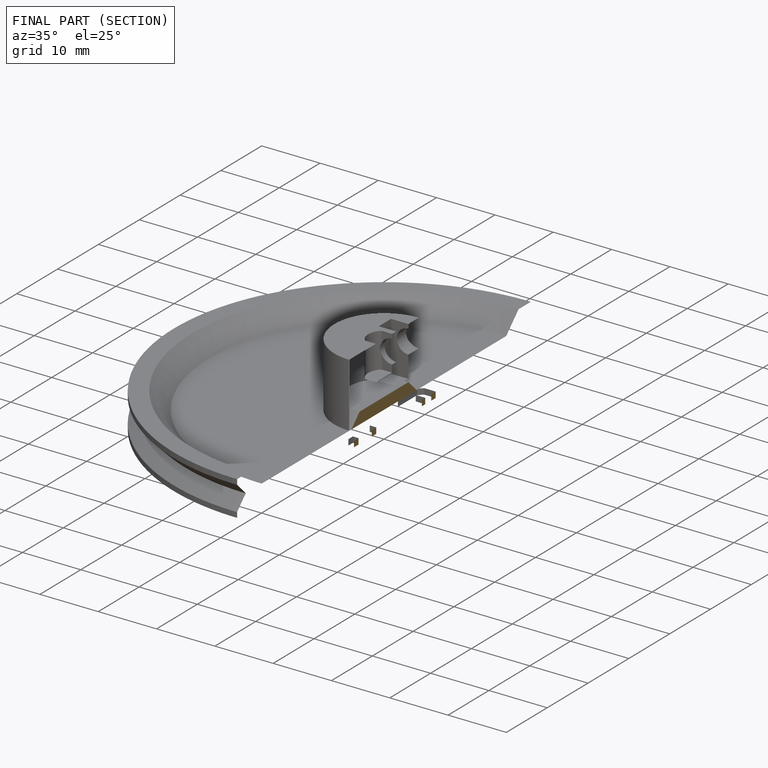
[diagram: finished part — half-section view (interior)]
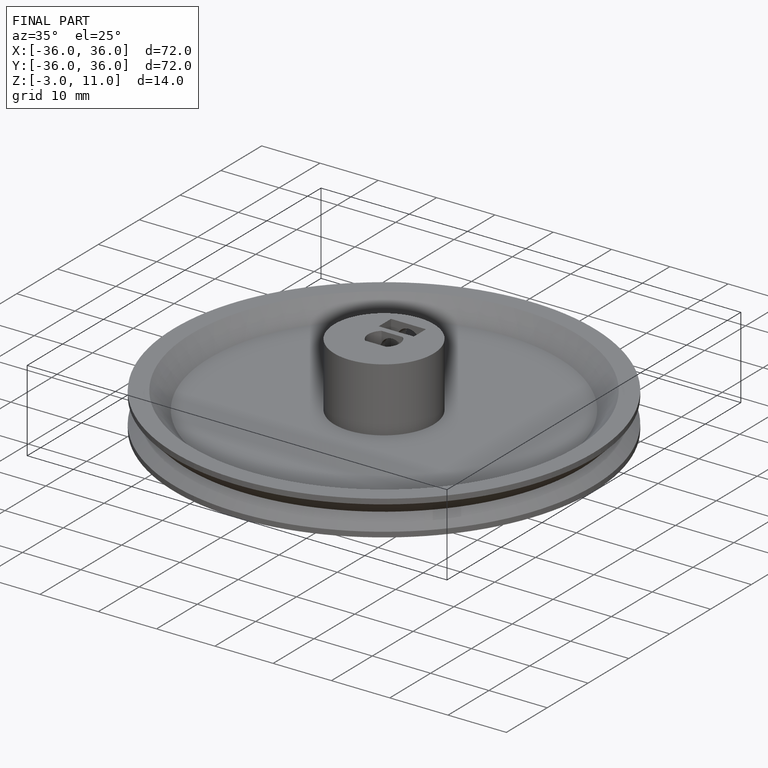
[diagram: finished part — iso view with bounding-box wireframe]
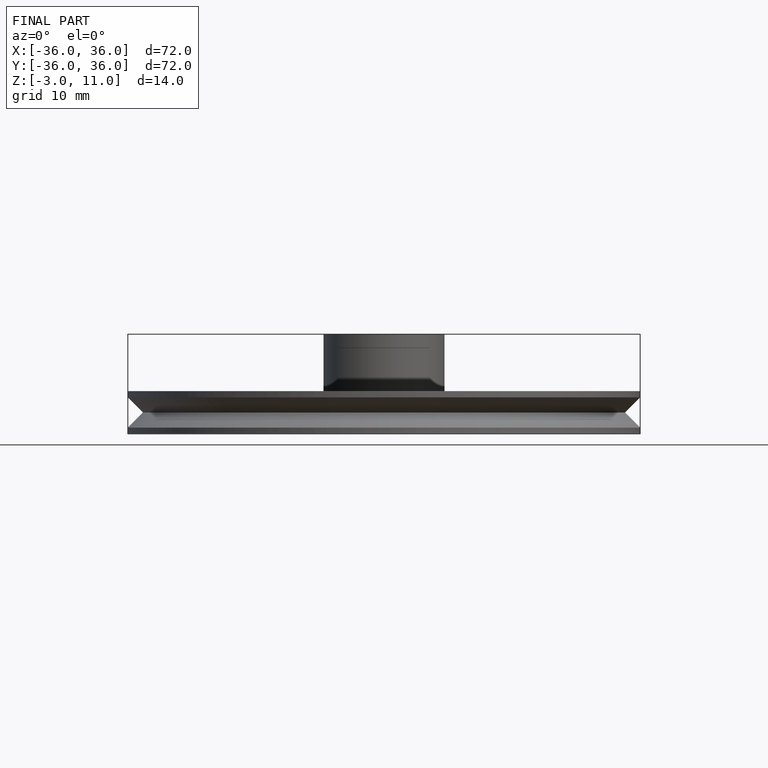
[diagram: finished part — front view with bounding-box wireframe]
